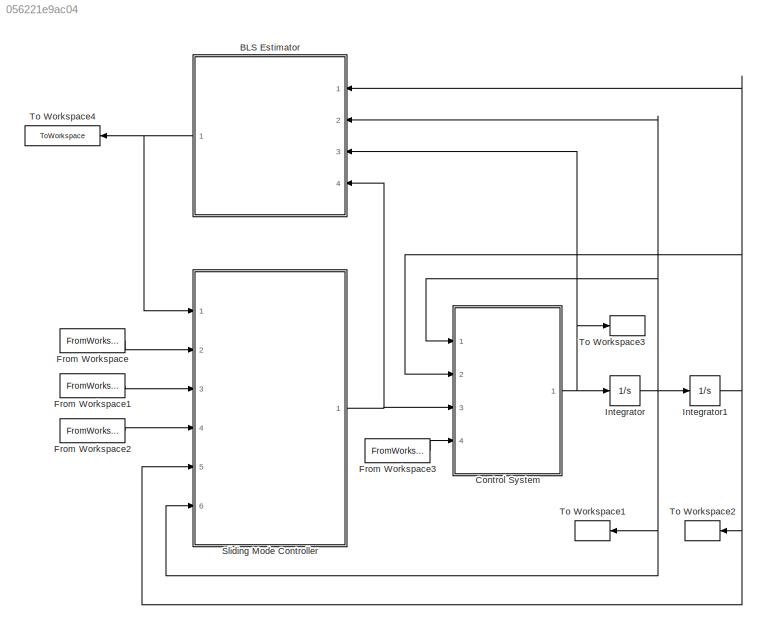
MODEL slx_056221e9ac04
KIND model
CONFIG AbsTol = auto
CONFIG EnableMultiTasking = off
CONFIG FixedStep = dt
CONFIG MaxStep = auto
CONFIG MinStep = auto
CONFIG RelTol = 1e-3
CONFIG SampleTimeConstraint = Unconstrained
CONFIG Solver = ode4
CONFIG SolverName = ode4
CONFIG StartTime = 0.0
CONFIG StopTime = t(end)
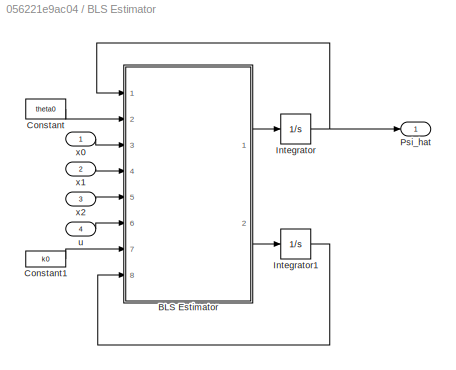
BLOCK [SubSystem] BLS Estimator
  Ports = [4, 1]
  RequestExecContextInheritance = off
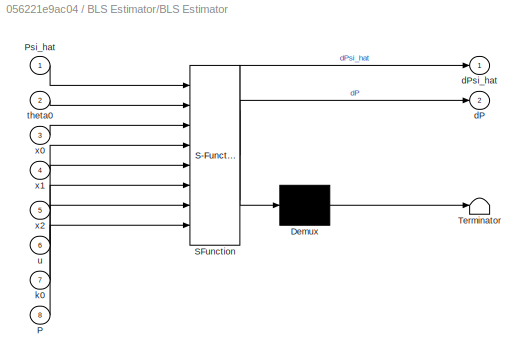
BLOCK [SubSystem] BLS Estimator/BLS Estimator
  ErrorFcn = Stateflow.Translate.translate
  PermitHierarchicalResolution = ExplicitOnly
  Ports = [8, 2]
  RequestExecContextInheritance = off
  SFBlockType = MATLAB Function
  TreatAsAtomicUnit = on
BLOCK [Demux] BLS Estimator/BLS Estimator/ Demux 
  Outputs = 1
  Ports = [1, 1]
BLOCK [S-Function] BLS Estimator/BLS Estimator/ SFunction 
  EnableBusSupport = on
  FunctionName = sf_sfun
  PortCounts = [8 3]
  Ports = [8, 3]
  SFcnIsStateOwnerBlock = off
  SFunctionDeploymentMode = off
  Tag = Stateflow S-Function ASMC 3
BLOCK [Terminator] BLS Estimator/BLS Estimator/ Terminator 
BLOCK [Inport] BLS Estimator/BLS Estimator/P
  IconDisplay = Port number
  Port = 8
BLOCK [Inport] BLS Estimator/BLS Estimator/Psi_hat
  IconDisplay = Port number
BLOCK [Outport] BLS Estimator/BLS Estimator/dP
  IconDisplay = Port number
  Port = 2
BLOCK [Outport] BLS Estimator/BLS Estimator/dPsi_hat
  IconDisplay = Port number
BLOCK [Inport] BLS Estimator/BLS Estimator/k0
  IconDisplay = Port number
  Port = 7
BLOCK [Inport] BLS Estimator/BLS Estimator/theta0
  IconDisplay = Port number
  Port = 2
BLOCK [Inport] BLS Estimator/BLS Estimator/u
  IconDisplay = Port number
  Port = 6
BLOCK [Inport] BLS Estimator/BLS Estimator/x0
  IconDisplay = Port number
  Port = 3
BLOCK [Inport] BLS Estimator/BLS Estimator/x1
  IconDisplay = Port number
  Port = 4
BLOCK [Inport] BLS Estimator/BLS Estimator/x2
  IconDisplay = Port number
  Port = 5
BLOCK [Constant] BLS Estimator/Constant
  Value = theta0
BLOCK [Constant] BLS Estimator/Constant1
  Value = k0
BLOCK [Integrator] BLS Estimator/Integrator
  InitialCondition = Psi_hat0
  Ports = [1, 1]
BLOCK [Integrator] BLS Estimator/Integrator1
  InitialCondition = k0*eye(2)
  Ports = [1, 1]
BLOCK [Outport] BLS Estimator/Psi_hat
  IconDisplay = Port number
BLOCK [Inport] BLS Estimator/u
  IconDisplay = Port number
  Port = 4
BLOCK [Inport] BLS Estimator/x0
  IconDisplay = Port number
BLOCK [Inport] BLS Estimator/x1
  IconDisplay = Port number
  Port = 2
BLOCK [Inport] BLS Estimator/x2
  IconDisplay = Port number
  Port = 3
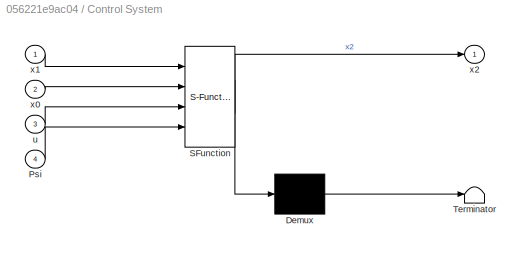
BLOCK [SubSystem] Control System
  ErrorFcn = Stateflow.Translate.translate
  PermitHierarchicalResolution = ExplicitOnly
  Ports = [4, 1]
  RequestExecContextInheritance = off
  SFBlockType = MATLAB Function
  TreatAsAtomicUnit = on
BLOCK [Demux] Control System/ Demux 
  Outputs = 1
  Ports = [1, 1]
BLOCK [S-Function] Control System/ SFunction 
  EnableBusSupport = on
  FunctionName = sf_sfun
  PortCounts = [4 2]
  Ports = [4, 2]
  SFcnIsStateOwnerBlock = off
  SFunctionDeploymentMode = off
  Tag = Stateflow S-Function ASMC 1
BLOCK [Terminator] Control System/ Terminator 
BLOCK [Inport] Control System/Psi
  IconDisplay = Port number
  Port = 4
BLOCK [Inport] Control System/u
  IconDisplay = Port number
  Port = 3
BLOCK [Inport] Control System/x0
  IconDisplay = Port number
  Port = 2
BLOCK [Inport] Control System/x1
  IconDisplay = Port number
BLOCK [Outport] Control System/x2
  IconDisplay = Port number
BLOCK [FromWorkspace] From Workspace
  SampleTime = dt
  VariableName = [t,x2d]
  ZeroCross = on
BLOCK [FromWorkspace] From Workspace1
  SampleTime = dt
  VariableName = [t,x1d]
  ZeroCross = on
BLOCK [FromWorkspace] From Workspace2
  SampleTime = dt
  VariableName = [t,x0d]
  ZeroCross = on
BLOCK [FromWorkspace] From Workspace3
  SampleTime = dt
  VariableName = [t,Psi]
  ZeroCross = on
BLOCK [Integrator] Integrator
  InitialCondition = x1d(1)
  Ports = [1, 1]
BLOCK [Integrator] Integrator1
  Ports = [1, 1]
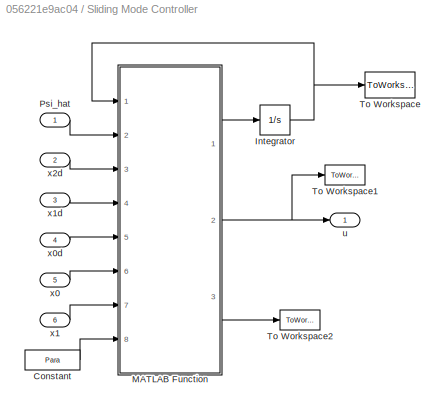
BLOCK [SubSystem] Sliding Mode Controller
  Ports = [6, 1]
  RequestExecContextInheritance = off
BLOCK [Constant] Sliding Mode Controller/Constant
  Value = Para
  VectorParams1D = off
BLOCK [Integrator] Sliding Mode Controller/Integrator
  Ports = [1, 1]
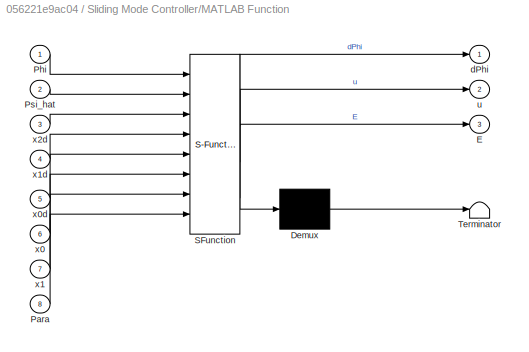
BLOCK [SubSystem] Sliding Mode Controller/MATLAB Function
  ErrorFcn = Stateflow.Translate.translate
  PermitHierarchicalResolution = ExplicitOnly
  Ports = [8, 3]
  RequestExecContextInheritance = off
  SFBlockType = MATLAB Function
  TreatAsAtomicUnit = on
BLOCK [Demux] Sliding Mode Controller/MATLAB Function/ Demux 
  Outputs = 1
  Ports = [1, 1]
BLOCK [S-Function] Sliding Mode Controller/MATLAB Function/ SFunction 
  EnableBusSupport = on
  FunctionName = sf_sfun
  PortCounts = [8 4]
  Ports = [8, 4]
  SFcnIsStateOwnerBlock = off
  SFunctionDeploymentMode = off
  Tag = Stateflow S-Function ASMC 2
BLOCK [Terminator] Sliding Mode Controller/MATLAB Function/ Terminator 
BLOCK [Outport] Sliding Mode Controller/MATLAB Function/E
  IconDisplay = Port number
  Port = 3
BLOCK [Inport] Sliding Mode Controller/MATLAB Function/Para
  IconDisplay = Port number
  Port = 8
BLOCK [Inport] Sliding Mode Controller/MATLAB Function/Phi
  IconDisplay = Port number
BLOCK [Inport] Sliding Mode Controller/MATLAB Function/Psi_hat
  IconDisplay = Port number
  Port = 2
BLOCK [Outport] Sliding Mode Controller/MATLAB Function/dPhi
  IconDisplay = Port number
BLOCK [Outport] Sliding Mode Controller/MATLAB Function/u
  IconDisplay = Port number
  Port = 2
BLOCK [Inport] Sliding Mode Controller/MATLAB Function/x0
  IconDisplay = Port number
  Port = 6
BLOCK [Inport] Sliding Mode Controller/MATLAB Function/x0d
  IconDisplay = Port number
  Port = 5
BLOCK [Inport] Sliding Mode Controller/MATLAB Function/x1
  IconDisplay = Port number
  Port = 7
BLOCK [Inport] Sliding Mode Controller/MATLAB Function/x1d
  IconDisplay = Port number
  Port = 4
BLOCK [Inport] Sliding Mode Controller/MATLAB Function/x2d
  IconDisplay = Port number
  Port = 3
BLOCK [Inport] Sliding Mode Controller/Psi_hat
  IconDisplay = Port number
BLOCK [ToWorkspace] Sliding Mode Controller/To Workspace
  MaxDataPoints = inf
  Ports = [1]
  SampleTime = -1
  VariableName = Phi
BLOCK [ToWorkspace] Sliding Mode Controller/To Workspace1
  MaxDataPoints = inf
  Ports = [1]
  SampleTime = -1
  VariableName = u
BLOCK [ToWorkspace] Sliding Mode Controller/To Workspace2
  MaxDataPoints = inf
  Ports = [1]
  SampleTime = -1
  VariableName = E
BLOCK [Outport] Sliding Mode Controller/u
  IconDisplay = Port number
BLOCK [Inport] Sliding Mode Controller/x0
  IconDisplay = Port number
  Port = 5
BLOCK [Inport] Sliding Mode Controller/x0d
  IconDisplay = Port number
  Port = 4
BLOCK [Inport] Sliding Mode Controller/x1
  IconDisplay = Port number
  Port = 6
BLOCK [Inport] Sliding Mode Controller/x1d
  IconDisplay = Port number
  Port = 3
BLOCK [Inport] Sliding Mode Controller/x2d
  IconDisplay = Port number
  Port = 2
BLOCK [ToWorkspace] To Workspace1
  MaxDataPoints = inf
  Ports = [1]
  SampleTime = -1
  VariableName = x1
BLOCK [ToWorkspace] To Workspace2
  MaxDataPoints = inf
  Ports = [1]
  SampleTime = -1
  VariableName = x0
BLOCK [ToWorkspace] To Workspace3
  MaxDataPoints = inf
  Ports = [1]
  SampleTime = -1
  VariableName = x2
BLOCK [ToWorkspace] To Workspace4
  MaxDataPoints = inf
  Ports = [1]
  SampleTime = -1
  VariableName = Psi_hat
LINE BLS Estimator/BLS Estimator:1 -> BLS Estimator/Integrator:1
LINE BLS Estimator/BLS Estimator:2 -> BLS Estimator/Integrator1:1
LINE BLS Estimator/Constant1:1 -> BLS Estimator/BLS Estimator:7
LINE BLS Estimator/Constant:1 -> BLS Estimator/BLS Estimator:2
LINE BLS Estimator/Integrator1:1 -> BLS Estimator/BLS Estimator:8
NET BLS Estimator/Integrator:1 -> BLS Estimator/BLS Estimator:1, BLS Estimator/Psi_hat:1
LINE BLS Estimator/u:1 -> BLS Estimator/BLS Estimator:6
LINE BLS Estimator/x0:1 -> BLS Estimator/BLS Estimator:3
LINE BLS Estimator/x1:1 -> BLS Estimator/BLS Estimator:4
LINE BLS Estimator/x2:1 -> BLS Estimator/BLS Estimator:5
NET BLS Estimator:1 -> Sliding Mode Controller:1, To Workspace4:1
NET Control System:1 -> BLS Estimator:3, Integrator:1, To Workspace3:1
LINE From Workspace1:1 -> Sliding Mode Controller:3
LINE From Workspace2:1 -> Sliding Mode Controller:4
LINE From Workspace3:1 -> Control System:4
LINE From Workspace:1 -> Sliding Mode Controller:2
NET Integrator1:1 -> BLS Estimator:1, Control System:2, Sliding Mode Controller:5, To Workspace2:1
NET Integrator:1 -> BLS Estimator:2, Control System:1, Integrator1:1, Sliding Mode Controller:6, To Workspace1:1
LINE Sliding Mode Controller/Constant:1 -> Sliding Mode Controller/MATLAB Function:8
NET Sliding Mode Controller/Integrator:1 -> Sliding Mode Controller/MATLAB Function:1, Sliding Mode Controller/To Workspace:1
LINE Sliding Mode Controller/MATLAB Function:1 -> Sliding Mode Controller/Integrator:1
NET Sliding Mode Controller/MATLAB Function:2 -> Sliding Mode Controller/To Workspace1:1, Sliding Mode Controller/u:1
LINE Sliding Mode Controller/MATLAB Function:3 -> Sliding Mode Controller/To Workspace2:1
LINE Sliding Mode Controller/Psi_hat:1 -> Sliding Mode Controller/MATLAB Function:2
LINE Sliding Mode Controller/x0:1 -> Sliding Mode Controller/MATLAB Function:6
LINE Sliding Mode Controller/x0d:1 -> Sliding Mode Controller/MATLAB Function:5
LINE Sliding Mode Controller/x1:1 -> Sliding Mode Controller/MATLAB Function:7
LINE Sliding Mode Controller/x1d:1 -> Sliding Mode Controller/MATLAB Function:4
LINE Sliding Mode Controller/x2d:1 -> Sliding Mode Controller/MATLAB Function:3
NET Sliding Mode Controller:1 -> BLS Estimator:4, Control System:3
note: NET lines group one-source signal fan-out (src -> all destinations, sorted); 1:1 wires keep LINE
CHART Control System states=1 transitions=1
  STATE_LABEL 'eML_blk_kernel()'
  STATE_LABEL 'SCRIPT:\nfunction x2 = SYS(x1,x0,u,Psi)\nalpha=Psi(1);\nb=Psi(2);\nf=x1^2*cos(3*x0);\nx2=-alpha*f+b*u;'
CHART Sliding Mode Controller/MATLAB Function states=1 transitions=1
  STATE_LABEL 'eML_blk_kernel()'
  STATE_LABEL 'SCRIPT:\nfunction [dPhi,u,E] = SMC(Phi,Psi_hat,x2d,x1d,x0d,x0,x1,Para)\nalpha_hat=Psi_hat(1);\nb_hat=Psi_hat(2);\na_bar=Para(3);\nb_bar=Para(4);\nlambda=Para(5);\nlambda1=Para(6);\neta=Para(7);\nsw=Para(8);\n\nf=x1^2*cos(3*x0);\ne0=x0-x0d; e1=x1-x1d;\nE=e1+lambda*e0;\nh=x2d-lambda*e1;\nbu_hat=alpha_hat*f+h;\nu_hat=bu_hat/b_hat;\n\nrho1=b_hat/(b_hat-sign(b_hat)*b_bar);\nk0=rho1*a_bar*abs(f)+(rho1-1)*abs(bu_hat);\n\nif ...<+290ch>'
CHART BLS Estimator/BLS Estimator states=1 transitions=1
  STATE_LABEL 'eML_blk_kernel()'
  STATE_LABEL "SCRIPT:\nfunction [dPsi_hat,dP] = BLS(Psi_hat,theta0,x0,x1,x2,u,k0,P)\ny=x2;\nW=[-x1^2*cos(3*x0) u];\nyhat=W*Psi_hat;\ne1=yhat-y;\ndPsi_hat=-P*W'*e1;\ntheta=theta0*(1-norm(P)/k0);\ndP=theta*P-P*(W'*W)*P;"
